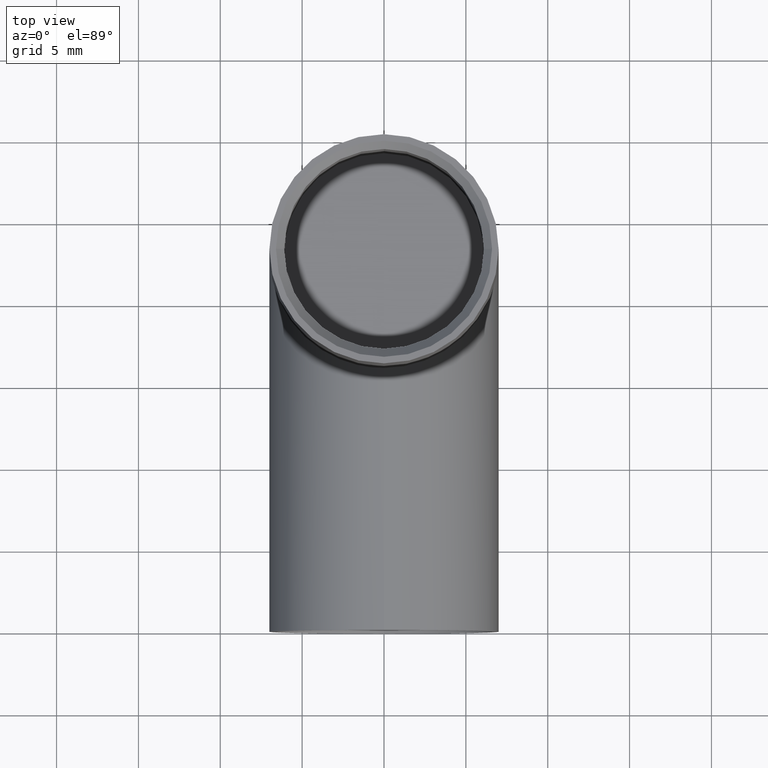
[diagram: clean part render]
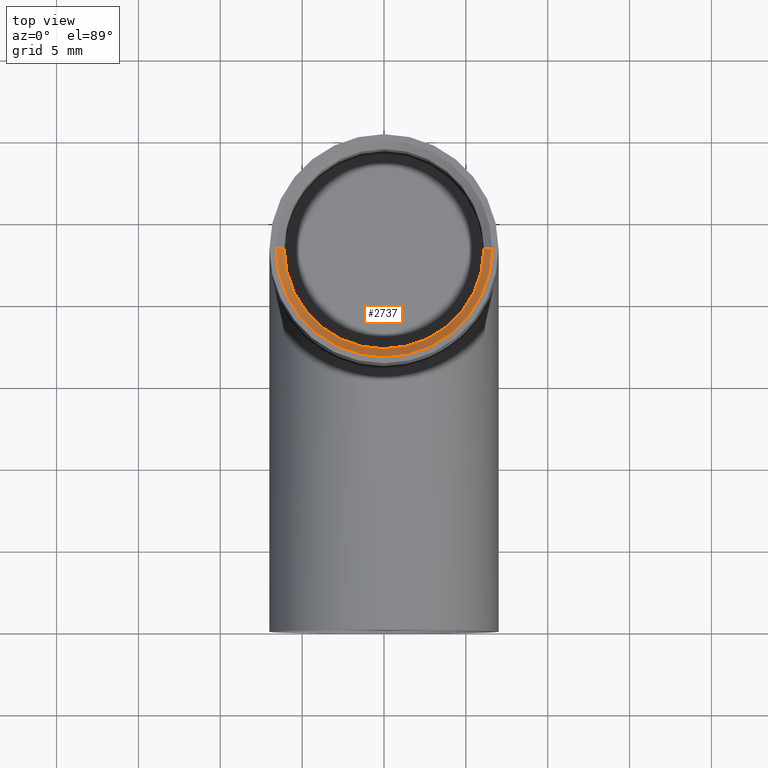
[diagram: same view with one face highlighted and labeled with its STEP entity id]
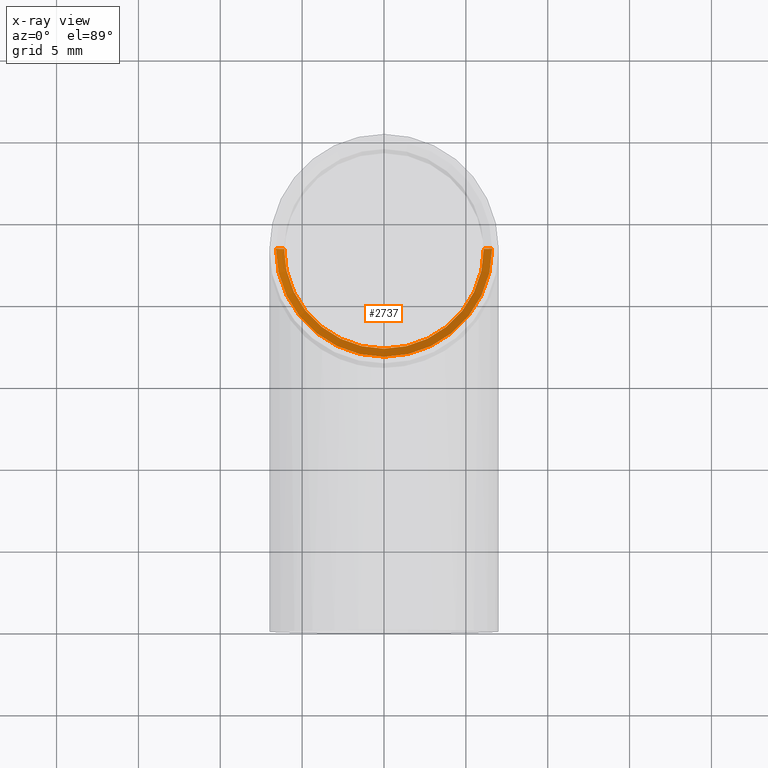
[diagram: x-ray of the same camera — body ghosted, the highlighted face saturated]
A machine part, top view. The second image highlights one B-rep face of the part: STEP entity #2737.
The next image is the same camera in x-ray: the body ghosted, the highlighted face saturated — about 0% of this face is hidden behind the body in this view.
In plain terms, the highlighted conical surface has half-angle 45 deg.
Its self-contained STEP definition (entity closure, byte-faithful):
#38 = CARTESIAN_POINT ( 'NONE',  ( 0.000000000000000000, 22.99999999999998579, 22.49999999999997868 ) ) ;
#207 = CIRCLE ( 'NONE', #6360, 6.099999999999999645 ) ;
#480 = VERTEX_POINT ( 'NONE', #8565 ) ;
#537 = AXIS2_PLACEMENT_3D ( 'NONE', #9181, #560, #12077 ) ;
#560 = DIRECTION ( 'NONE',  ( -0.000000000000000000, -0.000000000000000000, -1.000000000000000000 ) ) ;
#699 = CARTESIAN_POINT ( 'NONE',  ( 6.099999999999999645, 22.99999999999998579, 22.49999999999997868 ) ) ;
#1022 = VERTEX_POINT ( 'NONE', #10360 ) ;
#1036 = CARTESIAN_POINT ( 'NONE',  ( -6.600000000000008527, 22.99999999999998579, 22.99999999999999645 ) ) ;
#2109 = DIRECTION ( 'NONE',  ( -0.000000000000000000, -0.000000000000000000, 1.000000000000000000 ) ) ;
#2465 = EDGE_CURVE ( 'NONE', #5716, #480, #8584, .T. ) ;
#2737 = ADVANCED_FACE ( 'NONE', ( #3966 ), #5325, .F. ) ;
#2917 = AXIS2_PLACEMENT_3D ( 'NONE', #7779, #2935, #3925 ) ;
#2935 = DIRECTION ( 'NONE',  ( -0.000000000000000000, -0.000000000000000000, 1.000000000000000000 ) ) ;
#3023 = DIRECTION ( 'NONE',  ( -0.7071067811865414665, 8.659560562354858902E-17, 0.7071067811865536790 ) ) ;
#3025 = CARTESIAN_POINT ( 'NONE',  ( 0.000000000000000000, 22.99999999999998579, 22.49999999999997868 ) ) ;
#3697 = ORIENTED_EDGE ( 'NONE', *, *, #2465, .F. ) ;
#3706 = EDGE_CURVE ( 'NONE', #1022, #10377, #12344, .T. ) ;
#3925 = DIRECTION ( 'NONE',  ( 1.000000000000000000, 0.000000000000000000, 0.000000000000000000 ) ) ;
#3966 = FACE_OUTER_BOUND ( 'NONE', #8253, .T. ) ;
#4109 = EDGE_CURVE ( 'NONE', #4427, #1022, #8408, .T. ) ;
#4427 = VERTEX_POINT ( 'NONE', #699 ) ;
#4632 = EDGE_CURVE ( 'NONE', #480, #4427, #207, .T. ) ;
#5198 = ORIENTED_EDGE ( 'NONE', *, *, #12360, .T. ) ;
#5325 = CONICAL_SURFACE ( 'NONE', #2917, 6.600000000000008527, 0.7853981633974396193 ) ;
#5345 = VECTOR ( 'NONE', #3023, 1000.000000000000000 ) ;
#5716 = VERTEX_POINT ( 'NONE', #11513 ) ;
#6340 = ORIENTED_EDGE ( 'NONE', *, *, #4109, .F. ) ;
#6360 = AXIS2_PLACEMENT_3D ( 'NONE', #3025, #9841, #11629 ) ;
#6388 = CARTESIAN_POINT ( 'NONE',  ( -6.600000000000008527, 22.99999999999998579, 22.99999999999999645 ) ) ;
#7492 = VECTOR ( 'NONE', #9373, 1000.000000000000000 ) ;
#7779 = CARTESIAN_POINT ( 'NONE',  ( 0.000000000000000000, 22.99999999999998579, 22.99999999999999645 ) ) ;
#7840 = LINE ( 'NONE', #1036, #5345 ) ;
#8253 = EDGE_LOOP ( 'NONE', ( #3697, #5198, #8660, #6340, #10168 ) ) ;
#8408 = LINE ( 'NONE', #10370, #7492 ) ;
#8565 = CARTESIAN_POINT ( 'NONE',  ( 0.000000000000000000, 16.89999999999998437, 22.49999999999997868 ) ) ;
#8584 = CIRCLE ( 'NONE', #9398, 6.099999999999999645 ) ;
#8660 = ORIENTED_EDGE ( 'NONE', *, *, #3706, .F. ) ;
#9181 = CARTESIAN_POINT ( 'NONE',  ( 0.000000000000000000, 22.99999999999998579, 22.99999999999999645 ) ) ;
#9373 = DIRECTION ( 'NONE',  ( 0.7071067811865414665, 0.000000000000000000, 0.7071067811865536790 ) ) ;
#9398 = AXIS2_PLACEMENT_3D ( 'NONE', #38, #2109, #10644 ) ;
#9841 = DIRECTION ( 'NONE',  ( -0.000000000000000000, -0.000000000000000000, 1.000000000000000000 ) ) ;
#10168 = ORIENTED_EDGE ( 'NONE', *, *, #4632, .F. ) ;
#10360 = CARTESIAN_POINT ( 'NONE',  ( 6.600000000000008527, 22.99999999999998579, 22.99999999999999645 ) ) ;
#10370 = CARTESIAN_POINT ( 'NONE',  ( 6.600000000000008527, 22.99999999999998579, 22.99999999999999645 ) ) ;
#10377 = VERTEX_POINT ( 'NONE', #6388 ) ;
#10644 = DIRECTION ( 'NONE',  ( 1.000000000000000000, 0.000000000000000000, 0.000000000000000000 ) ) ;
#11513 = CARTESIAN_POINT ( 'NONE',  ( -6.099999999999999645, 22.99999999999998579, 22.49999999999997868 ) ) ;
#11629 = DIRECTION ( 'NONE',  ( 1.000000000000000000, 0.000000000000000000, 0.000000000000000000 ) ) ;
#12077 = DIRECTION ( 'NONE',  ( 1.000000000000000000, 0.000000000000000000, 0.000000000000000000 ) ) ;
#12344 = CIRCLE ( 'NONE', #537, 6.600000000000008527 ) ;
#12360 = EDGE_CURVE ( 'NONE', #5716, #10377, #7840, .T. ) ;